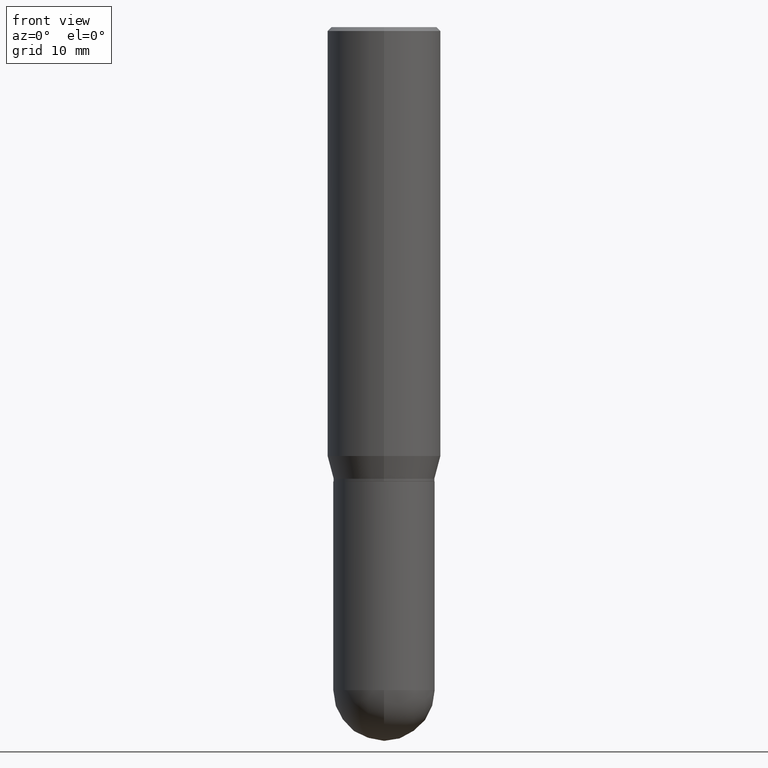
[diagram: clean part render]
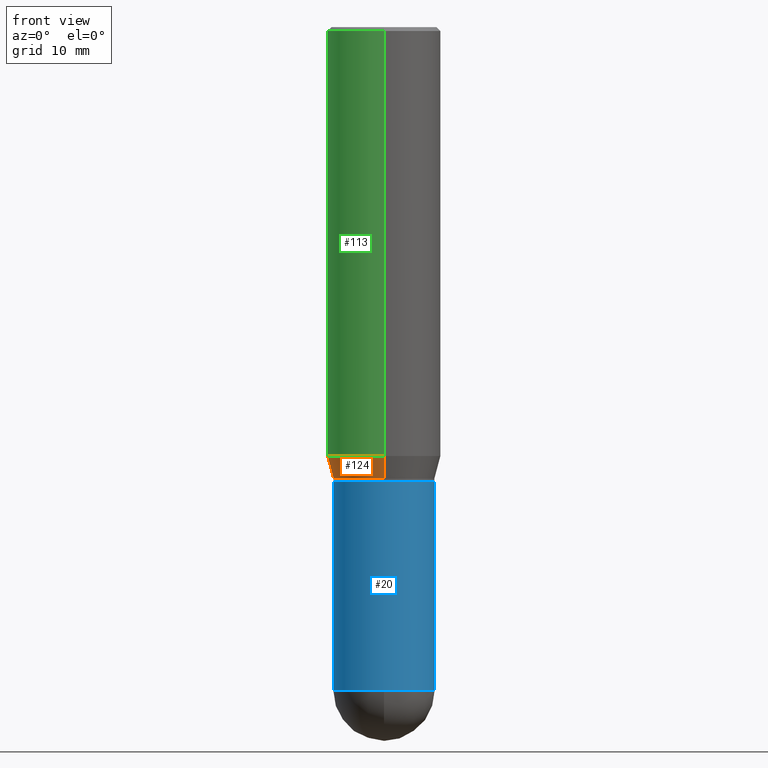
[diagram: same view with three faces highlighted in distinct colors, each labeled with its STEP entity id]
A machine part, front view with three faces highlighted in distinct colors.
Their STEP definitions:

[orange] entity #124 — the highlighted conical surface has half-angle 15 deg.
#10 = CARTESIAN_POINT ( 'NONE',  ( -1.363772610952084702E-15, -0.1953000000000059688, -1.739999999999999547 ) ) ;
#34 = EDGE_CURVE ( 'NONE', #212, #363, #67, .T. ) ;
#37 = VERTEX_POINT ( 'NONE', #159 ) ;
#42 = DIRECTION ( 'NONE',  ( 1.839019923739601499E-15, 0.2588190451025251249, 0.9659258262890670910 ) ) ;
#50 = EDGE_CURVE ( 'NONE', #212, #433, #380, .T. ) ;
#67 = LINE ( 'NONE', #506, #317 ) ;
#87 = ORIENTED_EDGE ( 'NONE', *, *, #438, .T. ) ;
#124 = ADVANCED_FACE ( 'NONE', ( #481 ), #204, .T. ) ;
#149 = DIRECTION ( 'NONE',  ( -6.982962677686265133E-15, -1.000000000000000000, 3.746534391310989557E-15 ) ) ;
#159 = CARTESIAN_POINT ( 'NONE',  ( -1.527523085743830414E-15, -0.2187500000000058009, -1.652483408562509082 ) ) ;
#174 = CARTESIAN_POINT ( 'NONE',  ( 4.041030628052402903E-29, -5.769709499966830493E-15, -1.652483408562509748 ) ) ;
#201 = DIRECTION ( 'NONE',  ( -2.445428866101404443E-29, 3.491538535316298316E-15, 1.000000000000000000 ) ) ;
#204 = CONICAL_SURFACE ( 'NONE', #281, 0.1952999999999998904, 0.2617993877991504625 ) ;
#212 = VERTEX_POINT ( 'NONE', #304 ) ;
#219 = CARTESIAN_POINT ( 'NONE',  ( 4.255046227016444789E-29, -6.075277051450358762E-15, -1.739999999999999991 ) ) ;
#223 = CARTESIAN_POINT ( 'NONE',  ( 4.255046227016444789E-29, -6.075277051450358762E-15, -1.739999999999999991 ) ) ;
#225 = VECTOR ( 'NONE', #479, 39.37007874015748854 ) ;
#229 = DIRECTION ( 'NONE',  ( -6.982962677686266711E-15, -1.000000000000000000, 2.797591391361254348E-15 ) ) ;
#278 = ORIENTED_EDGE ( 'NONE', *, *, #456, .F. ) ;
#281 = AXIS2_PLACEMENT_3D ( 'NONE', #219, #366, #229 ) ;
#293 = AXIS2_PLACEMENT_3D ( 'NONE', #223, #413, #443 ) ;
#298 = EDGE_LOOP ( 'NONE', ( #330, #442, #87, #278 ) ) ;
#304 = CARTESIAN_POINT ( 'NONE',  ( 1.471001098707388140E-15, 0.1952999999999938119, -1.740000000000000657 ) ) ;
#317 = VECTOR ( 'NONE', #42, 39.37007874015748854 ) ;
#330 = ORIENTED_EDGE ( 'NONE', *, *, #34, .F. ) ;
#332 = CIRCLE ( 'NONE', #408, 0.2187500000000000000 ) ;
#363 = VERTEX_POINT ( 'NONE', #405 ) ;
#365 = LINE ( 'NONE', #10, #225 ) ;
#366 = DIRECTION ( 'NONE',  ( -2.445428866101404443E-29, 3.491538535316298316E-15, 1.000000000000000000 ) ) ;
#380 = CIRCLE ( 'NONE', #293, 0.1952999999999998904 ) ;
#394 = CARTESIAN_POINT ( 'NONE',  ( -1.363772610952084702E-15, -0.1953000000000059688, -1.739999999999999547 ) ) ;
#405 = CARTESIAN_POINT ( 'NONE',  ( 1.554312234475258797E-15, 0.2187499999999941713, -1.652483408562510636 ) ) ;
#408 = AXIS2_PLACEMENT_3D ( 'NONE', #174, #201, #149 ) ;
#413 = DIRECTION ( 'NONE',  ( -2.445428866101404443E-29, 3.491538535316298316E-15, 1.000000000000000000 ) ) ;
#433 = VERTEX_POINT ( 'NONE', #394 ) ;
#438 = EDGE_CURVE ( 'NONE', #433, #37, #365, .T. ) ;
#442 = ORIENTED_EDGE ( 'NONE', *, *, #50, .T. ) ;
#443 = DIRECTION ( 'NONE',  ( -6.982962677686266711E-15, -1.000000000000000000, 2.797591391361254348E-15 ) ) ;
#456 = EDGE_CURVE ( 'NONE', #363, #37, #332, .T. ) ;
#479 = DIRECTION ( 'NONE',  ( -1.807323732225331323E-15, -0.2588190451025183525, 0.9659258262890689783 ) ) ;
#481 = FACE_OUTER_BOUND ( 'NONE', #298, .T. ) ;
#506 = CARTESIAN_POINT ( 'NONE',  ( 1.387689962939517088E-15, 0.1952999999999938119, -1.740000000000000657 ) ) ;

[blue] entity #20 — the highlighted cylindrical surface (partial cylindrical patch) has radius 4.9606 mm, axis along (-0, 0, 1).
#12 = LINE ( 'NONE', #368, #93 ) ;
#18 = CARTESIAN_POINT ( 'NONE',  ( 0.000000000000000000, 0.000000000000000000, 0.000000000000000000 ) ) ;
#20 = ADVANCED_FACE ( 'NONE', ( #328 ), #53, .T. ) ;
#23 = CARTESIAN_POINT ( 'NONE',  ( -0.1953000000000000291, -6.127199896719567549E-15, -1.750000000000000000 ) ) ;
#35 = ORIENTED_EDGE ( 'NONE', *, *, #411, .T. ) ;
#39 = EDGE_CURVE ( 'NONE', #480, #177, #12, .T. ) ;
#53 = CYLINDRICAL_SURFACE ( 'NONE', #145, 0.1953000000000000291 ) ;
#73 = ORIENTED_EDGE ( 'NONE', *, *, #164, .T. ) ;
#75 = CARTESIAN_POINT ( 'NONE',  ( 0.1953000000000000291, -1.363772610952128089E-15, 9.523173243129463579E-30 ) ) ;
#77 = ORIENTED_EDGE ( 'NONE', *, *, #290, .F. ) ;
#93 = VECTOR ( 'NONE', #261, 39.37007874015748143 ) ;
#109 = AXIS2_PLACEMENT_3D ( 'NONE', #140, #382, #193 ) ;
#121 = VERTEX_POINT ( 'NONE', #440 ) ;
#137 = VERTEX_POINT ( 'NONE', #375 ) ;
#140 = CARTESIAN_POINT ( 'NONE',  ( 6.247439159161168638E-29, -8.919687376342582955E-15, -2.554699999999999971 ) ) ;
#145 = AXIS2_PLACEMENT_3D ( 'NONE', #18, #337, #289 ) ;
#157 = AXIS2_PLACEMENT_3D ( 'NONE', #343, #492, #187 ) ;
#164 = EDGE_CURVE ( 'NONE', #121, #137, #254, .T. ) ;
#166 = DIRECTION ( 'NONE',  ( -2.445468806185136877E-29, 3.491481338843145188E-15, 1.000000000000000000 ) ) ;
#177 = VERTEX_POINT ( 'NONE', #23 ) ;
#187 = DIRECTION ( 'NONE',  ( 1.000000000000000000, -6.982962677686266711E-15, 0.000000000000000000 ) ) ;
#193 = DIRECTION ( 'NONE',  ( 1.000000000000000000, -6.982962677686266711E-15, 0.000000000000000000 ) ) ;
#211 = EDGE_CURVE ( 'NONE', #480, #121, #451, .T. ) ;
#213 = EDGE_LOOP ( 'NONE', ( #227, #354, #73, #35, #77 ) ) ;
#227 = ORIENTED_EDGE ( 'NONE', *, *, #39, .F. ) ;
#241 = CIRCLE ( 'NONE', #279, 0.1953000000000000291 ) ;
#242 = VERTEX_POINT ( 'NONE', #416 ) ;
#252 = LINE ( 'NONE', #75, #345 ) ;
#253 = DIRECTION ( 'NONE',  ( 1.000000000000000000, -6.982962677686267499E-15, 0.000000000000000000 ) ) ;
#254 = CIRCLE ( 'NONE', #157, 0.1953000000000000569 ) ;
#261 = DIRECTION ( 'NONE',  ( -2.445468806185136877E-29, 3.491481338843145188E-15, 1.000000000000000000 ) ) ;
#276 = DIRECTION ( 'NONE',  ( -2.445468806185136597E-29, 3.491481338843145583E-15, 1.000000000000000000 ) ) ;
#279 = AXIS2_PLACEMENT_3D ( 'NONE', #287, #276, #253 ) ;
#287 = CARTESIAN_POINT ( 'NONE',  ( 4.279570410823988484E-29, -6.110092342975504671E-15, -1.750000000000000000 ) ) ;
#289 = DIRECTION ( 'NONE',  ( 1.000000000000000000, -6.982962677686266711E-15, 4.876176775795935793E-29 ) ) ;
#290 = EDGE_CURVE ( 'NONE', #177, #242, #241, .T. ) ;
#328 = FACE_OUTER_BOUND ( 'NONE', #213, .T. ) ;
#337 = DIRECTION ( 'NONE',  ( -2.445468806185136597E-29, 3.491481338843145583E-15, 1.000000000000000000 ) ) ;
#343 = CARTESIAN_POINT ( 'NONE',  ( 6.247439159161168638E-29, -8.919687376342582955E-15, -2.554699999999999971 ) ) ;
#345 = VECTOR ( 'NONE', #166, 39.37007874015748143 ) ;
#354 = ORIENTED_EDGE ( 'NONE', *, *, #211, .T. ) ;
#368 = CARTESIAN_POINT ( 'NONE',  ( -0.1953000000000000291, 1.387689962939475870E-15, -9.606680231267831797E-30 ) ) ;
#375 = CARTESIAN_POINT ( 'NONE',  ( 0.1953000000000000569, -8.878662470611173282E-15, -2.554699999999999971 ) ) ;
#382 = DIRECTION ( 'NONE',  ( -2.445468806185136597E-29, 3.491481338843145583E-15, 1.000000000000000000 ) ) ;
#411 = EDGE_CURVE ( 'NONE', #137, #242, #252, .T. ) ;
#416 = CARTESIAN_POINT ( 'NONE',  ( 0.1953000000000000291, -7.473864953927632957E-15, -1.750000000000000000 ) ) ;
#440 = CARTESIAN_POINT ( 'NONE',  ( -1.387689962939413353E-15, -0.1953000000000089664, -2.554699999999999527 ) ) ;
#451 = CIRCLE ( 'NONE', #109, 0.1953000000000000569 ) ;
#467 = CARTESIAN_POINT ( 'NONE',  ( -0.1953000000000000569, -6.127199896719566760E-15, -2.554699999999999971 ) ) ;
#480 = VERTEX_POINT ( 'NONE', #467 ) ;
#492 = DIRECTION ( 'NONE',  ( -2.445468806185136597E-29, 3.491481338843145583E-15, 1.000000000000000000 ) ) ;

[green] entity #113 — the highlighted cylindrical surface (partial cylindrical patch) has radius 5.5562 mm, axis along (-0, 0, 1).
#3 = ORIENTED_EDGE ( 'NONE', *, *, #456, .T. ) ;
#37 = VERTEX_POINT ( 'NONE', #159 ) ;
#54 = VECTOR ( 'NONE', #158, 39.37007874015748143 ) ;
#113 = ADVANCED_FACE ( 'NONE', ( #401 ), #286, .T. ) ;
#114 = CARTESIAN_POINT ( 'NONE',  ( 3.668143299152134304E-31, -5.237307802974486843E-17, -0.01500000000000011394 ) ) ;
#130 = VERTEX_POINT ( 'NONE', #263 ) ;
#132 = CARTESIAN_POINT ( 'NONE',  ( 1.554312234475259191E-15, 0.2187499999999998890, -0.01500000000000087721 ) ) ;
#147 = CARTESIAN_POINT ( 'NONE',  ( 1.554312234475218762E-15, 0.2187500000000000000, -7.637740546004402196E-16 ) ) ;
#149 = DIRECTION ( 'NONE',  ( -6.982962677686265133E-15, -1.000000000000000000, 3.746534391310989557E-15 ) ) ;
#153 = CARTESIAN_POINT ( 'NONE',  ( -1.527523085743870449E-15, -0.2187500000000000000, 7.637740546004402196E-16 ) ) ;
#158 = DIRECTION ( 'NONE',  ( -2.445428866101404162E-29, 3.491538535316297921E-15, 1.000000000000000000 ) ) ;
#159 = CARTESIAN_POINT ( 'NONE',  ( -1.527523085743830414E-15, -0.2187500000000058009, -1.652483408562509082 ) ) ;
#174 = CARTESIAN_POINT ( 'NONE',  ( 4.041030628052402903E-29, -5.769709499966830493E-15, -1.652483408562509748 ) ) ;
#179 = VECTOR ( 'NONE', #306, 39.37007874015748143 ) ;
#191 = LINE ( 'NONE', #147, #179 ) ;
#201 = DIRECTION ( 'NONE',  ( -2.445428866101404443E-29, 3.491538535316298316E-15, 1.000000000000000000 ) ) ;
#220 = DIRECTION ( 'NONE',  ( -2.445428866101404443E-29, 3.491538535316298316E-15, 1.000000000000000000 ) ) ;
#238 = DIRECTION ( 'NONE',  ( -2.445428866101404443E-29, 3.491538535316298316E-15, 1.000000000000000000 ) ) ;
#248 = ORIENTED_EDGE ( 'NONE', *, *, #507, .F. ) ;
#263 = CARTESIAN_POINT ( 'NONE',  ( -1.527523085743870054E-15, -0.2187500000000000555, -0.01499999999999934892 ) ) ;
#277 = EDGE_CURVE ( 'NONE', #449, #130, #422, .T. ) ;
#286 = CYLINDRICAL_SURFACE ( 'NONE', #334, 0.2187500000000000000 ) ;
#306 = DIRECTION ( 'NONE',  ( -2.445428866101404162E-29, 3.491538535316297921E-15, 1.000000000000000000 ) ) ;
#318 = ORIENTED_EDGE ( 'NONE', *, *, #277, .F. ) ;
#319 = EDGE_CURVE ( 'NONE', #37, #130, #503, .T. ) ;
#332 = CIRCLE ( 'NONE', #408, 0.2187500000000000000 ) ;
#334 = AXIS2_PLACEMENT_3D ( 'NONE', #410, #220, #404 ) ;
#363 = VERTEX_POINT ( 'NONE', #405 ) ;
#401 = FACE_OUTER_BOUND ( 'NONE', #429, .T. ) ;
#404 = DIRECTION ( 'NONE',  ( -6.982962677686265133E-15, -1.000000000000000000, 3.491538535316298316E-15 ) ) ;
#405 = CARTESIAN_POINT ( 'NONE',  ( 1.554312234475258797E-15, 0.2187499999999941713, -1.652483408562510636 ) ) ;
#408 = AXIS2_PLACEMENT_3D ( 'NONE', #174, #201, #149 ) ;
#410 = CARTESIAN_POINT ( 'NONE',  ( 0.000000000000000000, 0.000000000000000000, 0.000000000000000000 ) ) ;
#422 = CIRCLE ( 'NONE', #502, 0.2187500000000000000 ) ;
#429 = EDGE_LOOP ( 'NONE', ( #248, #3, #454, #318 ) ) ;
#449 = VERTEX_POINT ( 'NONE', #132 ) ;
#454 = ORIENTED_EDGE ( 'NONE', *, *, #319, .T. ) ;
#456 = EDGE_CURVE ( 'NONE', #363, #37, #332, .T. ) ;
#502 = AXIS2_PLACEMENT_3D ( 'NONE', #114, #238, #504 ) ;
#503 = LINE ( 'NONE', #153, #54 ) ;
#504 = DIRECTION ( 'NONE',  ( -6.982962677686265133E-15, -1.000000000000000000, 3.492862791899308071E-15 ) ) ;
#507 = EDGE_CURVE ( 'NONE', #363, #449, #191, .T. ) ;